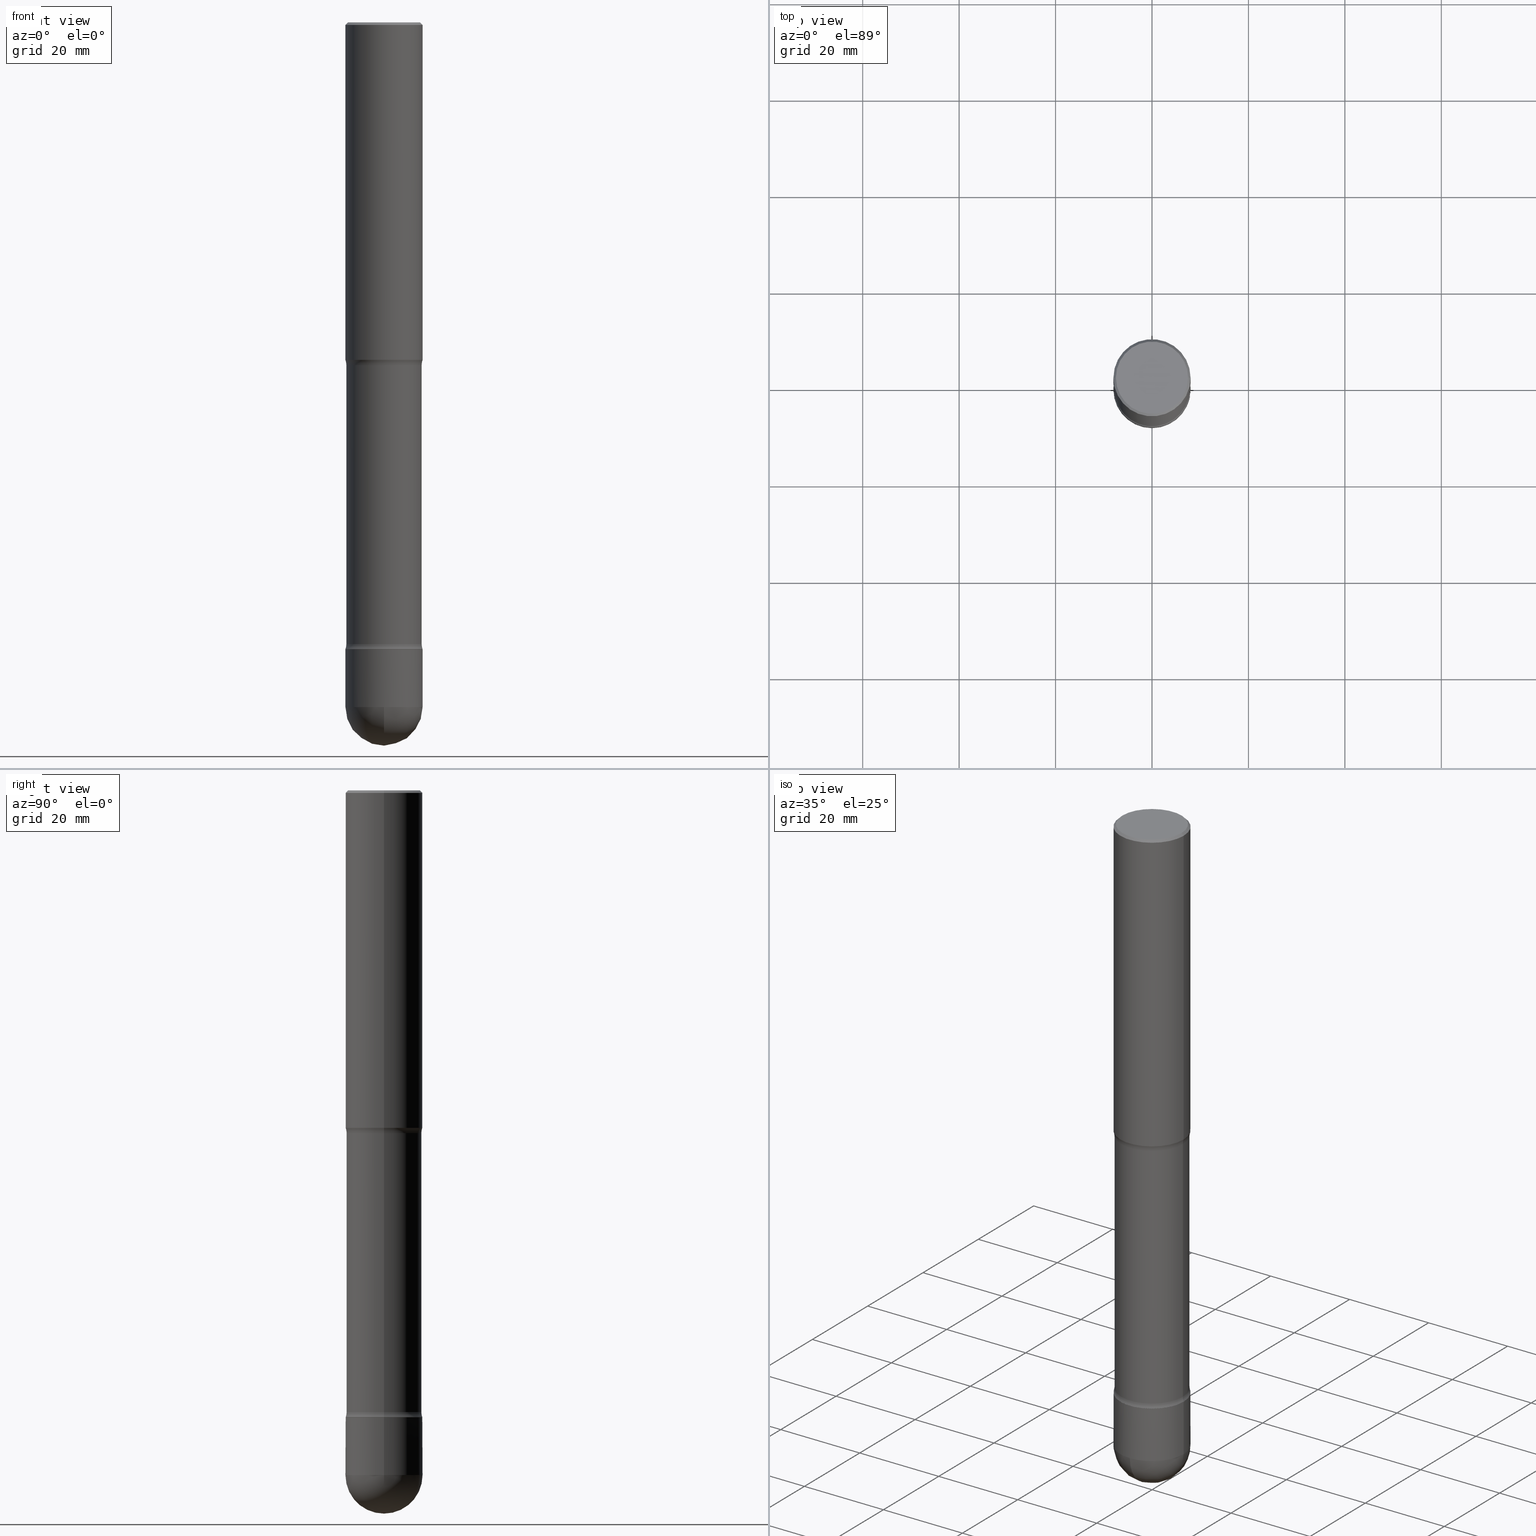
[diagram: canonical four-view strip — front | top / right | iso, engineering-drawing reading convention]
A machine part, canonical four-view strip (front | top / right | iso — engineering-drawing reading convention). The complete STEP part file that produces these views, byte-faithful:
ISO-10303-21;
HEADER;
FILE_DESCRIPTION (( 'STEP AP203' ),
    '1' );
FILE_NAME ('44619.STEP',
    '2024-02-29T19:25:50',
    ( '' ),
    ( '' ),
    'SwSTEP 2.0',
    'SolidWorks 2023',
    '' );
FILE_SCHEMA (( 'CONFIG_CONTROL_DESIGN' ));
ENDSEC;

DATA;
#1 = DIRECTION ( 'NONE',  ( 2.445468806185136597E-29, -3.491481338843145583E-15, -1.000000000000000000 ) ) ;
#2 = EDGE_CURVE ( 'NONE', #95, #460, #100, .T. ) ;
#3 = DIRECTION ( 'NONE',  ( 2.445468806185136597E-29, -3.491481338843145583E-15, -1.000000000000000000 ) ) ;
#4 = DIRECTION ( 'NONE',  ( 1.000000000000000000, -6.982962677686273021E-15, 0.000000000000000000 ) ) ;
#5 = ORIENTED_EDGE ( 'NONE', *, *, #277, .T. ) ;
#6 = LENGTH_MEASURE_WITH_UNIT ( LENGTH_MEASURE( 0.02539999999999999897 ), #123 );
#7 = AXIS2_PLACEMENT_3D ( 'NONE', #373, #77, #253 ) ;
#8 = EDGE_CURVE ( 'NONE', #544, #311, #177, .T. ) ;
#9 = VERTEX_POINT ( 'NONE', #181 ) ;
#10 = DIRECTION ( 'NONE',  ( 1.000000000000000000, -6.982962677686268288E-15, 0.000000000000000000 ) ) ;
#11 = FACE_OUTER_BOUND ( 'NONE', #497, .T. ) ;
#12 = ORIENTED_EDGE ( 'NONE', *, *, #203, .T. ) ;
#13 = VERTEX_POINT ( 'NONE', #545 ) ;
#14 = CARTESIAN_POINT ( 'NONE',  ( -0.3144499999999990081, -1.563544900773547130E-14, -5.118099999999999206 ) ) ;
#15 = CARTESIAN_POINT ( 'NONE',  ( 0.000000000000000000, 0.000000000000000000, 0.000000000000000000 ) ) ;
#16 = CARTESIAN_POINT ( 'NONE',  ( 1.251615389693614574E-28, -1.786975064033310244E-14, -5.118099999999999206 ) ) ;
#17 = EDGE_LOOP ( 'NONE', ( #145, #236, #274, #354 ) ) ;
#18 = TOROIDAL_SURFACE ( 'NONE', #556, 0.4324500000000119360, 0.1250000000000123512 ) ;
#19 = CALENDAR_DATE ( 2024, 29, 2 ) ;
#20 = AXIS2_PLACEMENT_3D ( 'NONE', #16, #175, #281 ) ;
#21 = AXIS2_PLACEMENT_3D ( 'NONE', #176, #337, #48 ) ;
#22 = ORIENTED_EDGE ( 'NONE', *, *, #81, .F. ) ;
#23 = ADVANCED_FACE ( 'NONE', ( #402 ), #356, .T. ) ;
#24 = APPLICATION_PROTOCOL_DEFINITION ( 'international standard', 'config_control_design', 1994, #214 ) ;
#25 = ADVANCED_FACE ( 'NONE', ( #349 ), #297, .T. ) ;
#26 = DATE_AND_TIME ( #358, #144 ) ;
#27 = DIRECTION ( 'NONE',  ( -1.000000000000000000, 6.982962677686265922E-15, -4.876176775795935793E-29 ) ) ;
#28 = APPROVAL_DATE_TIME ( #365, #147 ) ;
#29 = VECTOR ( 'NONE', #84, 39.37007874015748854 ) ;
#30 = VECTOR ( 'NONE', #444, 39.37007874015748143 ) ;
#31 = PLANE ( 'NONE',  #230 ) ;
#32 = DIRECTION ( 'NONE',  ( 6.982962677686266711E-15, 1.000000000000000000, 0.000000000000000000 ) ) ;
#33 = CC_DESIGN_PERSON_AND_ORGANIZATION_ASSIGNMENT ( #137, #459, ( #115 ) ) ;
#34 = DIRECTION ( 'NONE',  ( -2.445468806185136597E-29, 3.491481338843145583E-15, 1.000000000000000000 ) ) ;
#35 = PERSON ( 'UNSPECIFIED', 'UNSPECIFIED', 'UNSPECIFIED', ('UNSPECIFIED'), ('UNSPECIFIED'), ('UNSPECIFIED') ) ;
#36 = PRODUCT_DEFINITION_SHAPE ( 'NONE', 'NONE',  #228 ) ;
#37 = VECTOR ( 'NONE', #179, 39.37007874015748143 ) ;
#38 = FACE_OUTER_BOUND ( 'NONE', #234, .T. ) ;
#39 = CARTESIAN_POINT ( 'NONE',  ( 0.000000000000000000, 0.000000000000000000, 0.000000000000000000 ) ) ;
#40 = ADVANCED_FACE ( 'NONE', ( #135 ), #119, .T. ) ;
#41 = DIRECTION ( 'NONE',  ( 2.445468806185136597E-29, -3.491481338843145583E-15, -1.000000000000000000 ) ) ;
#42 = CARTESIAN_POINT ( 'NONE',  ( -0.3148173271255953476, -1.567011047892184807E-14, -5.117732672874402589 ) ) ;
#43 = CIRCLE ( 'NONE', #7, 0.3149499999999997302 ) ;
#44 = TOROIDAL_SURFACE ( 'NONE', #348, 0.4324500000000119360, 0.1250000000000123512 ) ;
#45 = FACE_OUTER_BOUND ( 'NONE', #385, .T. ) ;
#46 = CARTESIAN_POINT ( 'NONE',  ( 6.739467482965619353E-29, -9.622173421717825968E-15, -2.755900000000000460 ) ) ;
#47 = DIRECTION ( 'NONE',  ( 2.445468806185136597E-29, -3.491481338843145583E-15, -1.000000000000000000 ) ) ;
#48 = DIRECTION ( 'NONE',  ( 1.000000000000000000, -6.982962677686266711E-15, 4.876176775795935793E-29 ) ) ;
#49 = CARTESIAN_POINT ( 'NONE',  ( 1.364458217214061005E-28, -1.955787124980869236E-14, -5.590549999999999464 ) ) ;
#50 = FACE_OUTER_BOUND ( 'NONE', #194, .T. ) ;
#51 = LINE ( 'NONE', #563, #30 ) ;
#52 = VERTEX_POINT ( 'NONE', #146 ) ;
#53 = DIRECTION ( 'NONE',  ( 2.445468806185136597E-29, -3.491481338843145583E-15, -1.000000000000000000 ) ) ;
#54 = DIRECTION ( 'NONE',  ( 6.982962677686266711E-15, 1.000000000000000000, -3.469564049740295925E-15 ) ) ;
#55 = TOROIDAL_SURFACE ( 'NONE', #191, 0.4324499999999875111, 0.1249999999999883010 ) ;
#56 = FACE_OUTER_BOUND ( 'NONE', #140, .T. ) ;
#57 = EDGE_LOOP ( 'NONE', ( #456, #168, #495, #22 ) ) ;
#58 = DATE_AND_TIME ( #282, #306 ) ;
#59 = PRODUCT_RELATED_PRODUCT_CATEGORY ( 'detail', '', ( #115 ) ) ;
#60 = ADVANCED_FACE ( 'NONE', ( #50 ), #132, .T. ) ;
#61 = VERTEX_POINT ( 'NONE', #307 ) ;
#62 = EDGE_CURVE ( 'NONE', #458, #460, #351, .T. ) ;
#63 = ORIENTED_EDGE ( 'NONE', *, *, #208, .F. ) ;
#64 = APPROVAL_STATUS ( 'not_yet_approved' ) ;
#65 = AXIS2_PLACEMENT_3D ( 'NONE', #534, #361, #10 ) ;
#66 = CIRCLE ( 'NONE', #552, 0.2949499999999996569 ) ;
#67 = ADVANCED_FACE ( 'NONE', ( #56 ), #345, .T. ) ;
#68 = CARTESIAN_POINT ( 'NONE',  ( 0.3149499999999990085, -2.089380991493860711E-14, -5.590549999999999464 ) ) ;
#69 = COORDINATED_UNIVERSAL_TIME_OFFSET ( 5, 0, .BEHIND. ) ;
#70 = ORIENTED_EDGE ( 'NONE', *, *, #486, .F. ) ;
#71 = ADVANCED_FACE ( 'NONE', ( #190 ), #294, .T. ) ;
#72 = PERSON_AND_ORGANIZATION ( #35, #76 ) ;
#73 = VERTEX_POINT ( 'NONE', #98 ) ;
#74 = CARTESIAN_POINT ( 'NONE',  ( 1.364458217214061005E-28, -1.955787124980869236E-14, -5.590549999999999464 ) ) ;
#75 = CIRCLE ( 'NONE', #332, 0.3149499999999990085 ) ;
#76 = ORGANIZATION ( 'UNSPECIFIED', 'UNSPECIFIED', '' ) ;
#77 = DIRECTION ( 'NONE',  ( -1.000000000000000000, 7.105427357601001070E-15, -4.926315508542082329E-29 ) ) ;
#78 = APPLICATION_CONTEXT ( 'configuration controlled 3d designs of mechanical parts and assemblies' ) ;
#79 = EDGE_CURVE ( 'NONE', #464, #405, #312, .T. ) ;
#80 = EDGE_LOOP ( 'NONE', ( #293, #12, #539, #63 ) ) ;
#81 = EDGE_CURVE ( 'NONE', #206, #311, #199, .T. ) ;
#82 = AXIS2_PLACEMENT_3D ( 'NONE', #46, #182, #447 ) ;
#83 = EDGE_CURVE ( 'NONE', #131, #13, #75, .T. ) ;
#84 = DIRECTION ( 'NONE',  ( 0.7071067811863501751, -2.468850131080190245E-15, 0.7071067811867446373 ) ) ;
#85 = CARTESIAN_POINT ( 'NONE',  ( 0.3149500000000000077, -7.006715368645488390E-15, -2.755900000000000460 ) ) ;
#86 = DIRECTION ( 'NONE',  ( -1.000000000000000000, 6.982962677686268288E-15, 0.000000000000000000 ) ) ;
#87 = AXIS2_PLACEMENT_3D ( 'NONE', #496, #273, #174 ) ;
#88 = AXIS2_PLACEMENT_3D ( 'NONE', #227, #231, #141 ) ;
#89 = CIRCLE ( 'NONE', #370, 0.3144499999999990081 ) ;
#90 = LINE ( 'NONE', #224, #29 ) ;
#91 = CARTESIAN_POINT ( 'NONE',  ( 0.3149499999999990640, -2.199284095337283166E-15, 1.535751875536925365E-29 ) ) ;
#92 = ORIENTED_EDGE ( 'NONE', *, *, #378, .F. ) ;
#93 = DIRECTION ( 'NONE',  ( 1.000000000000000000, -6.982962677686273021E-15, 0.000000000000000000 ) ) ;
#94 = DIRECTION ( 'NONE',  ( 1.000000000000000000, -6.982962677686261977E-15, 0.000000000000000000 ) ) ;
#95 = VERTEX_POINT ( 'NONE', #470 ) ;
#96 = ORIENTED_EDGE ( 'NONE', *, *, #136, .T. ) ;
#97 = DIRECTION ( 'NONE',  ( -1.000000000000000000, 6.982962677686267499E-15, -4.883557194083113462E-29 ) ) ;
#98 = CARTESIAN_POINT ( 'NONE',  ( 0.3149499999999990640, -2.006903473567038758E-14, -5.118099999999999206 ) ) ;
#99 = EDGE_CURVE ( 'NONE', #95, #206, #163, .T. ) ;
#100 = CIRCLE ( 'NONE', #192, 0.3148173271255953476 ) ;
#101 = PERSON_AND_ORGANIZATION_ROLE ( 'creator' ) ;
#102 = AXIS2_PLACEMENT_3D ( 'NONE', #15, #104, #109 ) ;
#103 = DIRECTION ( 'NONE',  ( -1.000000000000000000, 6.982962677686265922E-15, 0.000000000000000000 ) ) ;
#104 = DIRECTION ( 'NONE',  ( 0.000000000000000000, 0.000000000000000000, 1.000000000000000000 ) ) ;
#105 = DIRECTION ( 'NONE',  ( -1.000000000000000000, 6.982962677686266711E-15, 0.000000000000000000 ) ) ;
#106 = PERSON_AND_ORGANIZATION ( #35, #76 ) ;
#107 = ORIENTED_EDGE ( 'NONE', *, *, #256, .T. ) ;
#108 = AXIS2_PLACEMENT_3D ( 'NONE', #257, #369, #509 ) ;
#109 = DIRECTION ( 'NONE',  ( 1.000000000000000000, 0.000000000000000000, 0.000000000000000000 ) ) ;
#110 = ORIENTED_EDGE ( 'NONE', *, *, #378, .T. ) ;
#111 = DIRECTION ( 'NONE',  ( 2.445468806185136597E-29, -3.491481338843145583E-15, -1.000000000000000000 ) ) ;
#112 = DIRECTION ( 'NONE',  ( 6.860497997771531562E-15, 1.000000000000000000, -3.491481338843145583E-15 ) ) ;
#113 = EDGE_LOOP ( 'NONE', ( #183, #130, #271, #313 ) ) ;
#114 = CIRCLE ( 'NONE', #401, 0.3149499999999990640 ) ;
#115 = PRODUCT ( '44619', '44619', '', ( #185 ) ) ;
#116 = ADVANCED_FACE ( 'NONE', ( #205 ), #31, .T. ) ;
#117 = CARTESIAN_POINT ( 'NONE',  ( 0.3149499999999997302, -2.230543471175006266E-15, -0.02000000000000033348 ) ) ;
#118 = CARTESIAN_POINT ( 'NONE',  ( 6.843758914944387642E-29, -9.771073946490062515E-15, -2.798546805273080640 ) ) ;
#119 = CONICAL_SURFACE ( 'NONE', #65, 0.3144499999999990081, 0.7853981633971693910 ) ;
#120 = AXIS2_PLACEMENT_3D ( 'NONE', #344, #229, #54 ) ;
#121 = DIRECTION ( 'NONE',  ( -1.000000000000000000, 6.982962677686268288E-15, 0.000000000000000000 ) ) ;
#122 = DIRECTION ( 'NONE',  ( -2.445468806185136597E-29, 3.491481338843145583E-15, 1.000000000000000000 ) ) ;
#123 =( LENGTH_UNIT ( ) NAMED_UNIT ( * ) SI_UNIT ( $, .METRE. ) );
#124 = DIRECTION ( 'NONE',  ( 2.445468806185136877E-29, -3.491481338843145188E-15, -1.000000000000000000 ) ) ;
#125 = CARTESIAN_POINT ( 'NONE',  ( 1.367151563441831346E-28, -1.951930099886954466E-14, -5.590549999999999464 ) ) ;
#126 = AXIS2_PLACEMENT_3D ( 'NONE', #529, #406, #105 ) ;
#127 = AXIS2_PLACEMENT_3D ( 'NONE', #241, #291, #474 ) ;
#128 = DIRECTION ( 'NONE',  ( 2.445468806185136597E-29, -3.491481338843145583E-15, -1.000000000000000000 ) ) ;
#129 = DESIGN_CONTEXT ( 'detailed design', #78, 'design' ) ;
#130 = ORIENTED_EDGE ( 'NONE', *, *, #188, .T. ) ;
#131 = VERTEX_POINT ( 'NONE', #68 ) ;
#132 = CYLINDRICAL_SURFACE ( 'NONE', #20, 0.3149499999999998967 ) ;
#133 = DIRECTION ( 'NONE',  ( 2.445468806185136597E-29, -3.491481338843145583E-15, -1.000000000000000000 ) ) ;
#134 = CC_DESIGN_PERSON_AND_ORGANIZATION_ASSIGNMENT ( #316, #363, ( #516 ) ) ;
#135 = FACE_OUTER_BOUND ( 'NONE', #536, .T. ) ;
#136 = EDGE_CURVE ( 'NONE', #505, #154, #473, .T. ) ;
#137 = PERSON_AND_ORGANIZATION ( #35, #76 ) ;
#138 = EDGE_LOOP ( 'NONE', ( #547, #457 ) ) ;
#139 = ORIENTED_EDGE ( 'NONE', *, *, #166, .T. ) ;
#140 = EDGE_LOOP ( 'NONE', ( #151, #504, #221, #180 ) ) ;
#141 = DIRECTION ( 'NONE',  ( 1.000000000000000000, -6.982962677686268288E-15, 0.000000000000000000 ) ) ;
#142 = CIRCLE ( 'NONE', #108, 0.3149499999999990085 ) ;
#143 = APPROVAL_STATUS ( 'not_yet_approved' ) ;
#144 = LOCAL_TIME ( 14, 25, 50.00000000000000000, #150 ) ;
#145 = ORIENTED_EDGE ( 'NONE', *, *, #188, .F. ) ;
#146 = CARTESIAN_POINT ( 'NONE',  ( -0.2949499999999996569, 2.059624841783562091E-15, -1.438228340021009676E-29 ) ) ;
#147 = APPROVAL ( #64, 'UNSPECIFIED' ) ;
#148 = PERSON_AND_ORGANIZATION ( #35, #76 ) ;
#149 = CARTESIAN_POINT ( 'NONE',  ( 1.367151563441831346E-28, -1.951930099886954466E-14, -5.590549999999999464 ) ) ;
#150 = COORDINATED_UNIVERSAL_TIME_OFFSET ( 5, 0, .BEHIND. ) ;
#151 = ORIENTED_EDGE ( 'NONE', *, *, #79, .T. ) ;
#152 = EDGE_CURVE ( 'NONE', #52, #464, #554, .T. ) ;
#153 = DIRECTION ( 'NONE',  ( -2.445468806185136877E-29, 3.491481338843145188E-15, 1.000000000000000000 ) ) ;
#154 = VERTEX_POINT ( 'NONE', #197 ) ;
#155 = CIRCLE ( 'NONE', #475, 0.3149499999999997302 ) ;
#156 = APPROVAL_PERSON_ORGANIZATION ( #462, #147, #243 ) ;
#157 = CYLINDRICAL_SURFACE ( 'NONE', #532, 0.3074499999999993904 ) ;
#158 = APPROVAL ( #320, 'UNSPECIFIED' ) ;
#159 = EDGE_CURVE ( 'NONE', #336, #9, #489, .T. ) ;
#160 = CARTESIAN_POINT ( 'NONE',  ( 0.3074499999999996125, -1.585522214044031702E-14, -5.075453194726919470 ) ) ;
#161 = DIRECTION ( 'NONE',  ( 2.445468806185136597E-29, -3.491481338843145583E-15, -1.000000000000000000 ) ) ;
#162 = EDGE_CURVE ( 'NONE', #368, #61, #43, .T. ) ;
#163 = CIRCLE ( 'NONE', #389, 0.1250000000000123512 ) ;
#164 =( GEOMETRIC_REPRESENTATION_CONTEXT ( 3 ) GLOBAL_UNCERTAINTY_ASSIGNED_CONTEXT ( ( #186 ) ) GLOBAL_UNIT_ASSIGNED_CONTEXT ( ( #352, #435, #278 ) ) REPRESENTATION_CONTEXT ( 'NONE', 'WORKASPACE' ) );
#165 = EDGE_LOOP ( 'NONE', ( #448, #491 ) ) ;
#166 = EDGE_CURVE ( 'NONE', #405, #464, #325, .T. ) ;
#167 = DIRECTION ( 'NONE',  ( -1.000000000000000000, 6.982962677686265922E-15, -4.876176775795935793E-29 ) ) ;
#168 = ORIENTED_EDGE ( 'NONE', *, *, #275, .T. ) ;
#169 = CARTESIAN_POINT ( 'NONE',  ( -0.3074499999999996125, -1.557393824030622744E-14, -5.075453194726919470 ) ) ;
#170 = CYLINDRICAL_SURFACE ( 'NONE', #21, 0.3149499999999990640 ) ;
#171 = CIRCLE ( 'NONE', #453, 0.3148173271255953476 ) ;
#172 = DIRECTION ( 'NONE',  ( -1.000000000000000000, 6.982962677686266711E-15, -4.883557194083112901E-29 ) ) ;
#173 = DIRECTION ( 'NONE',  ( 2.445468806185136597E-29, -3.491481338843145583E-15, -1.000000000000000000 ) ) ;
#174 = DIRECTION ( 'NONE',  ( -1.000000000000000000, 6.982962677686262766E-15, 0.000000000000000000 ) ) ;
#175 = DIRECTION ( 'NONE',  ( 2.445468806185136597E-29, -3.491481338843145583E-15, -1.000000000000000000 ) ) ;
#176 = CARTESIAN_POINT ( 'NONE',  ( 0.000000000000000000, 0.000000000000000000, 0.000000000000000000 ) ) ;
#177 = LINE ( 'NONE', #492, #267 ) ;
#178 = CIRCLE ( 'NONE', #555, 0.1249999999999882871 ) ;
#179 = DIRECTION ( 'NONE',  ( -2.445468806185136877E-29, 3.491481338843145188E-15, 1.000000000000000000 ) ) ;
#180 = ORIENTED_EDGE ( 'NONE', *, *, #355, .F. ) ;
#181 = CARTESIAN_POINT ( 'NONE',  ( -0.3149500000000000077, -7.422889326380536097E-15, -2.755900000000000460 ) ) ;
#182 = DIRECTION ( 'NONE',  ( 2.445468806185136597E-29, -3.491481338843145583E-15, -1.000000000000000000 ) ) ;
#183 = ORIENTED_EDGE ( 'NONE', *, *, #465, .T. ) ;
#184 = ORIENTED_EDGE ( 'NONE', *, *, #62, .T. ) ;
#185 = MECHANICAL_CONTEXT ( 'NONE', #214, 'mechanical' ) ;
#186 = UNCERTAINTY_MEASURE_WITH_UNIT (LENGTH_MEASURE( 1.000000000000000082E-05 ), #352, 'distance_accuracy_value', 'NONE');
#187 = ORIENTED_EDGE ( 'NONE', *, *, #263, .T. ) ;
#188 = EDGE_CURVE ( 'NONE', #290, #405, #255, .T. ) ;
#189 = ORIENTED_EDGE ( 'NONE', *, *, #478, .T. ) ;
#190 = FACE_OUTER_BOUND ( 'NONE', #17, .T. ) ;
#191 = AXIS2_PLACEMENT_3D ( 'NONE', #523, #3, #261 ) ;
#192 = AXIS2_PLACEMENT_3D ( 'NONE', #398, #53, #498 ) ;
#193 = DATE_AND_TIME ( #19, #268 ) ;
#194 = EDGE_LOOP ( 'NONE', ( #425, #139, #238, #279 ) ) ;
#195 = APPROVAL_ROLE ( '' ) ;
#196 = COORDINATED_UNIVERSAL_TIME_OFFSET ( 5, 0, .BEHIND. ) ;
#197 = CARTESIAN_POINT ( 'NONE',  ( -0.3149499999999990640, -1.645667147332489546E-14, -5.118099999999999206 ) ) ;
#198 = COORDINATED_UNIVERSAL_TIME_OFFSET ( 5, 0, .BEHIND. ) ;
#199 = CIRCLE ( 'NONE', #424, 0.3074499999999996125 ) ;
#200 = DIRECTION ( 'NONE',  ( 6.860497997771531562E-15, 1.000000000000000000, -3.491481338843145583E-15 ) ) ;
#201 = CC_DESIGN_DATE_AND_TIME_ASSIGNMENT ( #58, #416, ( #228 ) ) ;
#202 = AXIS2_PLACEMENT_3D ( 'NONE', #149, #403, #94 ) ;
#203 = EDGE_CURVE ( 'NONE', #353, #336, #178, .T. ) ;
#204 = DIRECTION ( 'NONE',  ( -1.000000000000000000, 6.982962677686266711E-15, 0.000000000000000000 ) ) ;
#205 = FACE_OUTER_BOUND ( 'NONE', #138, .T. ) ;
#206 = VERTEX_POINT ( 'NONE', #160 ) ;
#207 = MANIFOLD_SOLID_BREP ( 'Body-Move/Copy2[2]', #217 ) ;
#208 = EDGE_CURVE ( 'NONE', #544, #9, #380, .T. ) ;
#209 = DIRECTION ( 'NONE',  ( -6.982962677686266711E-15, -1.000000000000000000, 3.491481338843145583E-15 ) ) ;
#210 = VECTOR ( 'NONE', #507, 39.37007874015748143 ) ;
#211 = AXIS2_PLACEMENT_3D ( 'NONE', #269, #493, #341 ) ;
#212 = ORIENTED_EDGE ( 'NONE', *, *, #162, .F. ) ;
#213 = LINE ( 'NONE', #561, #250 ) ;
#214 = APPLICATION_CONTEXT ( 'configuration controlled 3d designs of mechanical parts and assemblies' ) ;
#215 = CARTESIAN_POINT ( 'NONE',  ( 0.3149499999999997302, -2.230543471175006266E-15, -0.02000000000000033348 ) ) ;
#216 = DIRECTION ( 'NONE',  ( -1.000000000000000000, 6.982962677686265922E-15, -4.883557194083112901E-29 ) ) ;
#217 = CLOSED_SHELL ( 'NONE', ( #25, #518, #254, #335, #67, #429, #71, #60, #322, #23, #327, #40, #116, #376 ) ) ;
#218 = TOROIDAL_SURFACE ( 'NONE', #522, 0.4324499999999875111, 0.1249999999999883010 ) ;
#219 = DIRECTION ( 'NONE',  ( -2.438088387897960049E-29, 3.491481338843145188E-15, 1.000000000000000000 ) ) ;
#220 = DIRECTION ( 'NONE',  ( -2.445468806185136597E-29, 3.491481338843145583E-15, 1.000000000000000000 ) ) ;
#221 = ORIENTED_EDGE ( 'NONE', *, *, #537, .F. ) ;
#222 = MANIFOLD_SOLID_BREP ( 'Body-Move/Copy2[1]', #339 ) ;
#223 = DIRECTION ( 'NONE',  ( -1.000000000000000000, 6.982962677686262766E-15, 0.000000000000000000 ) ) ;
#224 = CARTESIAN_POINT ( 'NONE',  ( 0.3144499999999990081, -2.006554325433154299E-14, -5.118099999999999206 ) ) ;
#225 = FACE_OUTER_BOUND ( 'NONE', #409, .T. ) ;
#226 = ORIENTED_EDGE ( 'NONE', *, *, #256, .F. ) ;
#227 = CARTESIAN_POINT ( 'NONE',  ( 1.251615389693614574E-28, -1.786975064033310244E-14, -5.118099999999999206 ) ) ;
#228 = PRODUCT_DEFINITION ( 'UNKNOWN', '', #232, #129 ) ;
#229 = DIRECTION ( 'NONE',  ( -1.000000000000000000, 6.982962677686266711E-15, -4.883557194083112901E-29 ) ) ;
#230 = AXIS2_PLACEMENT_3D ( 'NONE', #319, #420, #27 ) ;
#231 = DIRECTION ( 'NONE',  ( -2.445468806185136597E-29, 3.491481338843145583E-15, 1.000000000000000000 ) ) ;
#232 = PRODUCT_DEFINITION_FORMATION_WITH_SPECIFIED_SOURCE ( 'ANY', '', #115, .NOT_KNOWN. ) ;
#233 = DIRECTION ( 'NONE',  ( 1.000000000000000000, -6.982962677686266711E-15, 4.876176775795935793E-29 ) ) ;
#234 = EDGE_LOOP ( 'NONE', ( #5, #189, #550, #501 ) ) ;
#235 = DIRECTION ( 'NONE',  ( 2.445468806185136597E-29, -3.491481338843145583E-15, -1.000000000000000000 ) ) ;
#236 = ORIENTED_EDGE ( 'NONE', *, *, #347, .T. ) ;
#237 = PERSON_AND_ORGANIZATION_ROLE ( 'creator' ) ;
#238 = ORIENTED_EDGE ( 'NONE', *, *, #355, .T. ) ;
#239 = CARTESIAN_POINT ( 'NONE',  ( 1.251615389693614574E-28, -1.786975064033310244E-14, -5.118099999999999206 ) ) ;
#240 = ORIENTED_EDGE ( 'NONE', *, *, #99, .T. ) ;
#241 = CARTESIAN_POINT ( 'NONE',  ( 4.890937612370354609E-31, -6.982962677686407473E-17, -0.02000000000000033348 ) ) ;
#242 = AXIS2_PLACEMENT_3D ( 'NONE', #428, #161, #329 ) ;
#243 = APPROVAL_ROLE ( '' ) ;
#244 = CC_DESIGN_APPROVAL ( #158, ( #516 ) ) ;
#245 = EDGE_LOOP ( 'NONE', ( #283, #184, #514, #246 ) ) ;
#246 = ORIENTED_EDGE ( 'NONE', *, *, #284, .F. ) ;
#247 = CALENDAR_DATE ( 2024, 29, 2 ) ;
#248 = ADVANCED_FACE ( 'NONE', ( #558 ), #372, .F. ) ;
#249 = DIRECTION ( 'NONE',  ( 1.000000000000000000, -6.982962677686265922E-15, 4.883557194083112340E-29 ) ) ;
#250 = VECTOR ( 'NONE', #124, 39.37007874015748143 ) ;
#251 = DIRECTION ( 'NONE',  ( -1.000000000000000000, 6.982962677686268288E-15, 0.000000000000000000 ) ) ;
#252 = CIRCLE ( 'NONE', #202, 0.3149499999999990085 ) ;
#253 = DIRECTION ( 'NONE',  ( -7.105427357601000281E-15, -1.000000000000000000, 0.000000000000000000 ) ) ;
#254 = ADVANCED_FACE ( 'NONE', ( #38 ), #157, .T. ) ;
#255 = LINE ( 'NONE', #117, #452 ) ;
#256 = EDGE_CURVE ( 'NONE', #505, #61, #142, .T. ) ;
#257 = CARTESIAN_POINT ( 'NONE',  ( 1.367151563441831346E-28, -1.951930099886954466E-14, -5.590549999999999464 ) ) ;
#258 = AXIS2_PLACEMENT_3D ( 'NONE', #423, #374, #338 ) ;
#259 = FACE_OUTER_BOUND ( 'NONE', #286, .T. ) ;
#260 = CC_DESIGN_PERSON_AND_ORGANIZATION_ASSIGNMENT ( #72, #101, ( #228 ) ) ;
#261 = DIRECTION ( 'NONE',  ( -1.000000000000000000, 6.982962677686265922E-15, -4.883557194083112901E-29 ) ) ;
#262 = CARTESIAN_POINT ( 'NONE',  ( -0.3149499999999997302, 2.129454468560423812E-15, -0.02000000000000033348 ) ) ;
#263 = EDGE_CURVE ( 'NONE', #368, #13, #155, .T. ) ;
#264 = CARTESIAN_POINT ( 'NONE',  ( 1.251525560990883511E-28, -1.786846812452882696E-14, -5.117732672874402589 ) ) ;
#265 = AXIS2_PLACEMENT_3D ( 'NONE', #49, #172, #303 ) ;
#266 = ORIENTED_EDGE ( 'NONE', *, *, #2, .T. ) ;
#267 = VECTOR ( 'NONE', #395, 39.37007874015748143 ) ;
#268 = LOCAL_TIME ( 14, 25, 50.00000000000000000, #198 ) ;
#269 = CARTESIAN_POINT ( 'NONE',  ( -0.4324500000000119360, -1.470106790559535575E-14, -5.075453194726918582 ) ) ;
#270 = EDGE_CURVE ( 'NONE', #61, #131, #500, .T. ) ;
#271 = ORIENTED_EDGE ( 'NONE', *, *, #79, .F. ) ;
#272 = FACE_OUTER_BOUND ( 'NONE', #80, .T. ) ;
#273 = DIRECTION ( 'NONE',  ( 2.445468806185136597E-29, -3.491481338843145583E-15, -1.000000000000000000 ) ) ;
#274 = ORIENTED_EDGE ( 'NONE', *, *, #152, .T. ) ;
#275 = EDGE_CURVE ( 'NONE', #353, #544, #287, .T. ) ;
#276 = AXIS2_PLACEMENT_3D ( 'NONE', #386, #530, #383 ) ;
#277 = EDGE_CURVE ( 'NONE', #544, #353, #521, .T. ) ;
#278 =( NAMED_UNIT ( * ) SI_UNIT ( $, .STERADIAN. ) SOLID_ANGLE_UNIT ( ) );
#279 = ORIENTED_EDGE ( 'NONE', *, *, #159, .F. ) ;
#280 = ORIENTED_EDGE ( 'NONE', *, *, #203, .F. ) ;
#281 = DIRECTION ( 'NONE',  ( -1.000000000000000000, 6.982962677686265922E-15, 0.000000000000000000 ) ) ;
#282 = CALENDAR_DATE ( 2024, 29, 2 ) ;
#283 = ORIENTED_EDGE ( 'NONE', *, *, #357, .F. ) ;
#284 = EDGE_CURVE ( 'NONE', #331, #95, #90, .T. ) ;
#285 = EDGE_LOOP ( 'NONE', ( #212, #187, #519, #366 ) ) ;
#286 = EDGE_LOOP ( 'NONE', ( #517, #107, #326, #421, #318 ) ) ;
#287 = CIRCLE ( 'NONE', #479, 0.3074499999999992239 ) ;
#288 = APPROVAL_ROLE ( '' ) ;
#289 = CIRCLE ( 'NONE', #543, 0.3149499999999990640 ) ;
#290 = VERTEX_POINT ( 'NONE', #446 ) ;
#291 = DIRECTION ( 'NONE',  ( 2.445468806185136597E-29, -3.491481338843145583E-15, -1.000000000000000000 ) ) ;
#292 = CARTESIAN_POINT ( 'NONE',  ( 0.4324500000000119360, -2.068767247469724299E-14, -5.075453194726918582 ) ) ;
#293 = ORIENTED_EDGE ( 'NONE', *, *, #275, .F. ) ;
#294 = CONICAL_SURFACE ( 'NONE', #400, 0.3149499999999997302, 0.7853981633974415066 ) ;
#295 = CIRCLE ( 'NONE', #476, 0.3144499999999990081 ) ;
#296 = DIRECTION ( 'NONE',  ( 2.445468806185136597E-29, -3.491481338843145583E-15, -1.000000000000000000 ) ) ;
#297 = CONICAL_SURFACE ( 'NONE', #88, 0.3144499999999990081, 0.7853981633971693910 ) ;
#298 = APPROVAL_PERSON_ORGANIZATION ( #408, #382, #195 ) ;
#299 = EDGE_CURVE ( 'NONE', #405, #336, #213, .T. ) ;
#300 = DIRECTION ( 'NONE',  ( -1.000000000000000000, 6.982962677686267499E-15, -4.883557194083113462E-29 ) ) ;
#301 = SPHERICAL_SURFACE ( 'NONE', #120, 0.3149499999999997302 ) ;
#302 = DIRECTION ( 'NONE',  ( 2.445468806185136877E-29, -3.491481338843145188E-15, -1.000000000000000000 ) ) ;
#303 = DIRECTION ( 'NONE',  ( 6.982962677686266711E-15, 1.000000000000000000, -3.469564049740295925E-15 ) ) ;
#304 = ORIENTED_EDGE ( 'NONE', *, *, #427, .F. ) ;
#305 = AXIS2_PLACEMENT_3D ( 'NONE', #375, #111, #204 ) ;
#306 = LOCAL_TIME ( 14, 25, 50.00000000000000000, #455 ) ;
#307 = CARTESIAN_POINT ( 'NONE',  ( -2.237854346276293990E-15, -0.3149500000000188815, -5.590549999999997688 ) ) ;
#308 = FACE_OUTER_BOUND ( 'NONE', #165, .T. ) ;
#309 = DIRECTION ( 'NONE',  ( 2.445468806185136597E-29, -3.491481338843145583E-15, -1.000000000000000000 ) ) ;
#310 = CALENDAR_DATE ( 2024, 29, 2 ) ;
#311 = VERTEX_POINT ( 'NONE', #169 ) ;
#312 = CIRCLE ( 'NONE', #126, 0.3149499999999997302 ) ;
#313 = ORIENTED_EDGE ( 'NONE', *, *, #152, .F. ) ;
#314 = DIRECTION ( 'NONE',  ( -1.000000000000000000, 6.982962677686263555E-15, 0.000000000000000000 ) ) ;
#315 = ADVANCED_FACE ( 'NONE', ( #259 ), #170, .T. ) ;
#316 = PERSON_AND_ORGANIZATION ( #35, #76 ) ;
#317 = DIRECTION ( 'NONE',  ( -1.000000000000000000, 6.982962677686266711E-15, 0.000000000000000000 ) ) ;
#318 = ORIENTED_EDGE ( 'NONE', *, *, #384, .F. ) ;
#319 = CARTESIAN_POINT ( 'NONE',  ( 2.195792613998564404E-15, 0.3144499999999811335, -5.118100000000000094 ) ) ;
#320 = APPROVAL_STATUS ( 'not_yet_approved' ) ;
#321 = EDGE_LOOP ( 'NONE', ( #379, #96, #394, #70, #410 ) ) ;
#322 = ADVANCED_FACE ( 'NONE', ( #45 ), #55, .F. ) ;
#323 = ORIENTED_EDGE ( 'NONE', *, *, #559, .T. ) ;
#324 = CARTESIAN_POINT ( 'NONE',  ( -0.3149499999999997302, 2.129454468560423812E-15, -0.02000000000000033348 ) ) ;
#325 = CIRCLE ( 'NONE', #242, 0.3149499999999997302 ) ;
#326 = ORIENTED_EDGE ( 'NONE', *, *, #270, .T. ) ;
#327 = ADVANCED_FACE ( 'NONE', ( #433 ), #44, .F. ) ;
#328 = CARTESIAN_POINT ( 'NONE',  ( 1.251615389693614574E-28, -1.786975064033310244E-14, -5.118099999999999206 ) ) ;
#329 = DIRECTION ( 'NONE',  ( -1.000000000000000000, 6.982962677686266711E-15, 0.000000000000000000 ) ) ;
#330 = CIRCLE ( 'NONE', #87, 0.3074499999999996125 ) ;
#331 = VERTEX_POINT ( 'NONE', #387 ) ;
#332 = AXIS2_PLACEMENT_3D ( 'NONE', #125, #34, #413 ) ;
#333 = EDGE_LOOP ( 'NONE', ( #323, #564 ) ) ;
#334 = CARTESIAN_POINT ( 'NONE',  ( 1.251615389693614574E-28, -1.786975064033310244E-14, -5.118099999999999206 ) ) ;
#335 = ADVANCED_FACE ( 'NONE', ( #272 ), #218, .F. ) ;
#336 = VERTEX_POINT ( 'NONE', #85 ) ;
#337 = DIRECTION ( 'NONE',  ( -2.445468806185136597E-29, 3.491481338843145583E-15, 1.000000000000000000 ) ) ;
#338 = DIRECTION ( 'NONE',  ( 1.000000000000000000, -6.982962677686261977E-15, 0.000000000000000000 ) ) ;
#339 = CLOSED_SHELL ( 'NONE', ( #449, #510, #512, #315, #248 ) ) ;
#340 = CIRCLE ( 'NONE', #211, 0.1250000000000123512 ) ;
#341 = DIRECTION ( 'NONE',  ( 1.000000000000000000, -6.982962677686271444E-15, 0.000000000000000000 ) ) ;
#342 = CARTESIAN_POINT ( 'NONE',  ( 1.241186246495737521E-28, -1.772085011556086274E-14, -5.075453194726918582 ) ) ;
#343 = DIRECTION ( 'NONE',  ( 2.445468806185136597E-29, -3.491481338843145583E-15, -1.000000000000000000 ) ) ;
#344 = CARTESIAN_POINT ( 'NONE',  ( 1.364458217214061005E-28, -1.955787124980869236E-14, -5.590549999999999464 ) ) ;
#345 = CYLINDRICAL_SURFACE ( 'NONE', #439, 0.3149499999999998967 ) ;
#346 = LINE ( 'NONE', #565, #502 ) ;
#347 = EDGE_CURVE ( 'NONE', #290, #52, #66, .T. ) ;
#348 = AXIS2_PLACEMENT_3D ( 'NONE', #437, #343, #300 ) ;
#349 = FACE_OUTER_BOUND ( 'NONE', #245, .T. ) ;
#350 = FACE_OUTER_BOUND ( 'NONE', #285, .T. ) ;
#351 = LINE ( 'NONE', #14, #431 ) ;
#352 =( CONVERSION_BASED_UNIT ( 'INCH', #6 ) LENGTH_UNIT ( ) NAMED_UNIT ( #541 ) );
#353 = VERTEX_POINT ( 'NONE', #396 ) ;
#354 = ORIENTED_EDGE ( 'NONE', *, *, #166, .F. ) ;
#355 = EDGE_CURVE ( 'NONE', #464, #9, #346, .T. ) ;
#356 = CYLINDRICAL_SURFACE ( 'NONE', #542, 0.3074499999999993904 ) ;
#357 = EDGE_CURVE ( 'NONE', #458, #331, #89, .T. ) ;
#358 = CALENDAR_DATE ( 2024, 29, 2 ) ;
#359 = ORIENTED_EDGE ( 'NONE', *, *, #99, .F. ) ;
#360 = AXIS2_PLACEMENT_3D ( 'NONE', #328, #432, #167 ) ;
#361 = DIRECTION ( 'NONE',  ( -2.445468806185136597E-29, 3.491481338843145583E-15, 1.000000000000000000 ) ) ;
#362 = AXIS2_PLACEMENT_3D ( 'NONE', #399, #388, #438 ) ;
#363 = PERSON_AND_ORGANIZATION_ROLE ( 'classification_officer' ) ;
#364 = ORIENTED_EDGE ( 'NONE', *, *, #527, .T. ) ;
#365 = DATE_AND_TIME ( #310, #480 ) ;
#366 = ORIENTED_EDGE ( 'NONE', *, *, #270, .F. ) ;
#367 = APPROVAL_DATE_TIME ( #419, #158 ) ;
#368 = VERTEX_POINT ( 'NONE', #562 ) ;
#369 = DIRECTION ( 'NONE',  ( -2.445468806185136597E-29, 3.491481338843145583E-15, 1.000000000000000000 ) ) ;
#370 = AXIS2_PLACEMENT_3D ( 'NONE', #484, #128, #121 ) ;
#371 = APPLICATION_PROTOCOL_DEFINITION ( 'international standard', 'config_control_design', 1994, #78 ) ;
#372 = PLANE ( 'NONE',  #360 ) ;
#373 = CARTESIAN_POINT ( 'NONE',  ( 1.364458217214061005E-28, -1.955787124980869236E-14, -5.590549999999999464 ) ) ;
#374 = DIRECTION ( 'NONE',  ( -2.445468806185136597E-29, 3.491481338843145583E-15, 1.000000000000000000 ) ) ;
#375 = CARTESIAN_POINT ( 'NONE',  ( 6.739467482965619353E-29, -9.622173421717825968E-15, -2.755900000000000460 ) ) ;
#376 = ADVANCED_FACE ( 'NONE', ( #308 ), #526, .T. ) ;
#377 = DIRECTION ( 'NONE',  ( 0.7071067811865426878, -7.319954787623238690E-15, -0.7071067811865523467 ) ) ;
#378 = EDGE_CURVE ( 'NONE', #460, #311, #340, .T. ) ;
#379 = ORIENTED_EDGE ( 'NONE', *, *, #445, .T. ) ;
#380 = CIRCLE ( 'NONE', #463, 0.1249999999999882871 ) ;
#381 = CC_DESIGN_SECURITY_CLASSIFICATION ( #516, ( #232 ) ) ;
#382 = APPROVAL ( #143, 'UNSPECIFIED' ) ;
#383 = DIRECTION ( 'NONE',  ( -1.000000000000000000, 6.982962677686265133E-15, 0.000000000000000000 ) ) ;
#384 = EDGE_CURVE ( 'NONE', #154, #73, #289, .T. ) ;
#385 = EDGE_LOOP ( 'NONE', ( #280, #477, #407, #450 ) ) ;
#386 = CARTESIAN_POINT ( 'NONE',  ( 6.843758914944387642E-29, -9.771073946490062515E-15, -2.798546805273080640 ) ) ;
#387 = CARTESIAN_POINT ( 'NONE',  ( 0.3144499999999990081, -2.006618451223367600E-14, -5.118099999999999206 ) ) ;
#388 = DIRECTION ( 'NONE',  ( 2.445468806185136597E-29, -3.491481338843145583E-15, -1.000000000000000000 ) ) ;
#389 = AXIS2_PLACEMENT_3D ( 'NONE', #292, #112, #511 ) ;
#390 = CC_DESIGN_APPROVAL ( #147, ( #228 ) ) ;
#391 = CC_DESIGN_PERSON_AND_ORGANIZATION_ASSIGNMENT ( #422, #237, ( #232 ) ) ;
#392 = DIRECTION ( 'NONE',  ( -1.000000000000000000, 6.982962677686267499E-15, -4.876176775795936353E-29 ) ) ;
#393 = DIRECTION ( 'NONE',  ( -2.445468806185136597E-29, 3.491481338843145583E-15, 1.000000000000000000 ) ) ;
#394 = ORIENTED_EDGE ( 'NONE', *, *, #559, .F. ) ;
#395 = DIRECTION ( 'NONE',  ( 2.445468806185136877E-29, -3.491481338843145188E-15, -1.000000000000000000 ) ) ;
#396 = CARTESIAN_POINT ( 'NONE',  ( 0.3074499999999992239, -1.183161066101044135E-14, -2.798546805273080640 ) ) ;
#397 = CARTESIAN_POINT ( 'NONE',  ( 1.251615389693614574E-28, -1.786975064033310244E-14, -5.118099999999999206 ) ) ;
#398 = CARTESIAN_POINT ( 'NONE',  ( 1.251525560990883511E-28, -1.786846812452882696E-14, -5.117732672874402589 ) ) ;
#399 = CARTESIAN_POINT ( 'NONE',  ( 0.000000000000000000, 0.000000000000000000, 0.000000000000000000 ) ) ;
#400 = AXIS2_PLACEMENT_3D ( 'NONE', #535, #309, #317 ) ;
#401 = AXIS2_PLACEMENT_3D ( 'NONE', #397, #220, #4 ) ;
#402 = FACE_OUTER_BOUND ( 'NONE', #57, .T. ) ;
#403 = DIRECTION ( 'NONE',  ( -2.445468806185136597E-29, 3.491481338843145583E-15, 1.000000000000000000 ) ) ;
#404 = ORIENTED_EDGE ( 'NONE', *, *, #284, .T. ) ;
#405 = VERTEX_POINT ( 'NONE', #215 ) ;
#406 = DIRECTION ( 'NONE',  ( 2.445468806185136597E-29, -3.491481338843145583E-15, -1.000000000000000000 ) ) ;
#407 = ORIENTED_EDGE ( 'NONE', *, *, #208, .T. ) ;
#408 = PERSON_AND_ORGANIZATION ( #35, #76 ) ;
#409 = EDGE_LOOP ( 'NONE', ( #430, #240, #557, #92 ) ) ;
#410 = ORIENTED_EDGE ( 'NONE', *, *, #83, .T. ) ;
#411 = APPROVAL_DATE_TIME ( #26, #382 ) ;
#412 = CIRCLE ( 'NONE', #82, 0.3149500000000000077 ) ;
#413 = DIRECTION ( 'NONE',  ( 1.000000000000000000, -6.982962677686261977E-15, 0.000000000000000000 ) ) ;
#414 = APPROVAL_PERSON_ORGANIZATION ( #148, #158, #288 ) ;
#415 = ORIENTED_EDGE ( 'NONE', *, *, #263, .F. ) ;
#416 = DATE_TIME_ROLE ( 'creation_date' ) ;
#417 = EDGE_LOOP ( 'NONE', ( #359, #304, #110, #364 ) ) ;
#418 = EDGE_CURVE ( 'NONE', #331, #458, #295, .T. ) ;
#419 = DATE_AND_TIME ( #247, #490 ) ;
#420 = DIRECTION ( 'NONE',  ( 2.438088387897960049E-29, -3.491481338843145188E-15, -1.000000000000000000 ) ) ;
#421 = ORIENTED_EDGE ( 'NONE', *, *, #486, .T. ) ;
#422 = PERSON_AND_ORGANIZATION ( #35, #76 ) ;
#423 = CARTESIAN_POINT ( 'NONE',  ( 1.367151563441831346E-28, -1.951930099886954466E-14, -5.590549999999999464 ) ) ;
#424 = AXIS2_PLACEMENT_3D ( 'NONE', #442, #47, #223 ) ;
#425 = ORIENTED_EDGE ( 'NONE', *, *, #299, .F. ) ;
#426 = DIRECTION ( 'NONE',  ( 2.445468806185136597E-29, -3.491481338843145583E-15, -1.000000000000000000 ) ) ;
#427 = EDGE_CURVE ( 'NONE', #460, #95, #171, .T. ) ;
#428 = CARTESIAN_POINT ( 'NONE',  ( 4.890937612370354609E-31, -6.982962677686407473E-17, -0.02000000000000033348 ) ) ;
#429 = ADVANCED_FACE ( 'NONE', ( #461 ), #515, .T. ) ;
#430 = ORIENTED_EDGE ( 'NONE', *, *, #2, .F. ) ;
#431 = VECTOR ( 'NONE', #503, 39.37007874015748854 ) ;
#432 = DIRECTION ( 'NONE',  ( 2.438088387897960049E-29, -3.491481338843145188E-15, -1.000000000000000000 ) ) ;
#433 = FACE_OUTER_BOUND ( 'NONE', #417, .T. ) ;
#434 = CARTESIAN_POINT ( 'NONE',  ( 1.251615389693614574E-28, -1.786975064033310244E-14, -5.118099999999999206 ) ) ;
#435 =( NAMED_UNIT ( * ) PLANE_ANGLE_UNIT ( ) SI_UNIT ( $, .RADIAN. ) );
#436 = AXIS2_PLACEMENT_3D ( 'NONE', #525, #393, #233 ) ;
#437 = CARTESIAN_POINT ( 'NONE',  ( 1.241186246495737521E-28, -1.772085011556086274E-14, -5.075453194726918582 ) ) ;
#438 = DIRECTION ( 'NONE',  ( -1.000000000000000000, 6.982962677686267499E-15, -4.876176775795936353E-29 ) ) ;
#439 = AXIS2_PLACEMENT_3D ( 'NONE', #239, #235, #103 ) ;
#440 = CC_DESIGN_APPROVAL ( #382, ( #232 ) ) ;
#441 = ORIENTED_EDGE ( 'NONE', *, *, #162, .T. ) ;
#442 = CARTESIAN_POINT ( 'NONE',  ( 1.241186246495737745E-28, -1.772085011556086905E-14, -5.075453194726919470 ) ) ;
#443 = CARTESIAN_POINT ( 'NONE',  ( 1.251615389693614574E-28, -1.786975064033310244E-14, -5.118099999999999206 ) ) ;
#444 = DIRECTION ( 'NONE',  ( 2.445468806185136877E-29, -3.491481338843145188E-15, -1.000000000000000000 ) ) ;
#445 = EDGE_CURVE ( 'NONE', #13, #505, #252, .T. ) ;
#446 = CARTESIAN_POINT ( 'NONE',  ( 0.2949499999999996569, -2.127023677808858891E-15, 1.463937372219020093E-29 ) ) ;
#447 = DIRECTION ( 'NONE',  ( -1.000000000000000000, 6.982962677686266711E-15, 0.000000000000000000 ) ) ;
#448 = ORIENTED_EDGE ( 'NONE', *, *, #465, .F. ) ;
#449 = ADVANCED_FACE ( 'NONE', ( #451 ), #488, .T. ) ;
#450 = ORIENTED_EDGE ( 'NONE', *, *, #537, .T. ) ;
#451 = FACE_OUTER_BOUND ( 'NONE', #321, .T. ) ;
#452 = VECTOR ( 'NONE', #377, 39.37007874015748143 ) ;
#453 = AXIS2_PLACEMENT_3D ( 'NONE', #264, #133, #314 ) ;
#454 = DIRECTION ( 'NONE',  ( -1.000000000000000000, 6.982962677686268288E-15, 0.000000000000000000 ) ) ;
#455 = COORDINATED_UNIVERSAL_TIME_OFFSET ( 5, 0, .BEHIND. ) ;
#456 = ORIENTED_EDGE ( 'NONE', *, *, #478, .F. ) ;
#457 = ORIENTED_EDGE ( 'NONE', *, *, #357, .T. ) ;
#458 = VERTEX_POINT ( 'NONE', #531 ) ;
#459 = PERSON_AND_ORGANIZATION_ROLE ( 'design_owner' ) ;
#460 = VERTEX_POINT ( 'NONE', #42 ) ;
#461 = FACE_OUTER_BOUND ( 'NONE', #113, .T. ) ;
#462 = PERSON_AND_ORGANIZATION ( #35, #76 ) ;
#463 = AXIS2_PLACEMENT_3D ( 'NONE', #472, #209, #469 ) ;
#464 = VERTEX_POINT ( 'NONE', #262 ) ;
#465 = EDGE_CURVE ( 'NONE', #52, #290, #533, .T. ) ;
#466 = AXIS2_PLACEMENT_3D ( 'NONE', #482, #219, #520 ) ;
#467 = SECURITY_CLASSIFICATION_LEVEL ( 'unclassified' ) ;
#468 = ORIENTED_EDGE ( 'NONE', *, *, #445, .F. ) ;
#469 = DIRECTION ( 'NONE',  ( 1.000000000000000000, -6.982962677686264344E-15, 0.000000000000000000 ) ) ;
#470 = CARTESIAN_POINT ( 'NONE',  ( 0.3148173271255953476, -2.002827176693776307E-14, -5.117732672874402589 ) ) ;
#471 = CC_DESIGN_DATE_AND_TIME_ASSIGNMENT ( #193, #546, ( #516 ) ) ;
#472 = CARTESIAN_POINT ( 'NONE',  ( -0.4324499999999875111, -6.751291736524724343E-15, -2.798546805273080640 ) ) ;
#473 = LINE ( 'NONE', #548, #506 ) ;
#474 = DIRECTION ( 'NONE',  ( -1.000000000000000000, 6.982962677686266711E-15, 0.000000000000000000 ) ) ;
#475 = AXIS2_PLACEMENT_3D ( 'NONE', #74, #249, #32 ) ;
#476 = AXIS2_PLACEMENT_3D ( 'NONE', #434, #41, #86 ) ;
#477 = ORIENTED_EDGE ( 'NONE', *, *, #277, .F. ) ;
#478 = EDGE_CURVE ( 'NONE', #353, #206, #51, .T. ) ;
#479 = AXIS2_PLACEMENT_3D ( 'NONE', #118, #173, #524 ) ;
#480 = LOCAL_TIME ( 14, 25, 50.00000000000000000, #196 ) ;
#481 = DIRECTION ( 'NONE',  ( 2.445468806185136597E-29, -3.491481338843145583E-15, -1.000000000000000000 ) ) ;
#482 = CARTESIAN_POINT ( 'NONE',  ( 2.059624841783562091E-15, 0.2949499999999996569, -1.025543908401684169E-15 ) ) ;
#483 = CARTESIAN_POINT ( 'NONE',  ( -0.3149499999999990085, -1.645667147332489546E-14, -5.590549999999999464 ) ) ;
#484 = CARTESIAN_POINT ( 'NONE',  ( 1.251615389693614574E-28, -1.786975064033310244E-14, -5.118099999999999206 ) ) ;
#485 = DIRECTION ( 'NONE',  ( 2.445468806185136597E-29, -3.491481338843145583E-15, -1.000000000000000000 ) ) ;
#486 = EDGE_CURVE ( 'NONE', #131, #73, #566, .T. ) ;
#487 = CARTESIAN_POINT ( 'NONE',  ( 6.843758914944387642E-29, -9.771073946490062515E-15, -2.798546805273080640 ) ) ;
#488 = CYLINDRICAL_SURFACE ( 'NONE', #436, 0.3149499999999990640 ) ;
#489 = CIRCLE ( 'NONE', #305, 0.3149500000000000077 ) ;
#490 = LOCAL_TIME ( 14, 25, 50.00000000000000000, #69 ) ;
#491 = ORIENTED_EDGE ( 'NONE', *, *, #347, .F. ) ;
#492 = CARTESIAN_POINT ( 'NONE',  ( -0.3074499999999993904, -1.572283876507846399E-14, -5.118099999999999206 ) ) ;
#493 = DIRECTION ( 'NONE',  ( -6.982962677686266711E-15, -1.000000000000000000, 3.491481338843145583E-15 ) ) ;
#494 = SPHERICAL_SURFACE ( 'NONE', #265, 0.3149499999999997302 ) ;
#495 = ORIENTED_EDGE ( 'NONE', *, *, #8, .T. ) ;
#496 = CARTESIAN_POINT ( 'NONE',  ( 1.241186246495737745E-28, -1.772085011556086905E-14, -5.075453194726919470 ) ) ;
#497 = EDGE_LOOP ( 'NONE', ( #415, #441, #226, #468 ) ) ;
#498 = DIRECTION ( 'NONE',  ( -1.000000000000000000, 6.982962677686263555E-15, 0.000000000000000000 ) ) ;
#499 = ORIENTED_EDGE ( 'NONE', *, *, #62, .F. ) ;
#500 = CIRCLE ( 'NONE', #258, 0.3149499999999990085 ) ;
#501 = ORIENTED_EDGE ( 'NONE', *, *, #8, .F. ) ;
#502 = VECTOR ( 'NONE', #302, 39.37007874015748143 ) ;
#503 = DIRECTION ( 'NONE',  ( -0.7071067811863501751, 7.493145998869639452E-15, 0.7071067811867446373 ) ) ;
#504 = ORIENTED_EDGE ( 'NONE', *, *, #299, .T. ) ;
#505 = VERTEX_POINT ( 'NONE', #483 ) ;
#506 = VECTOR ( 'NONE', #153, 39.37007874015748143 ) ;
#507 = DIRECTION ( 'NONE',  ( -0.7071067811865426878, 2.468850131082206573E-15, -0.7071067811865523467 ) ) ;
#508 = ORIENTED_EDGE ( 'NONE', *, *, #418, .F. ) ;
#509 = DIRECTION ( 'NONE',  ( 1.000000000000000000, -6.982962677686261977E-15, 0.000000000000000000 ) ) ;
#510 = ADVANCED_FACE ( 'NONE', ( #11 ), #494, .T. ) ;
#511 = DIRECTION ( 'NONE',  ( -1.000000000000000000, 6.860497997771535507E-15, 0.000000000000000000 ) ) ;
#512 = ADVANCED_FACE ( 'NONE', ( #350 ), #301, .T. ) ;
#513 = CARTESIAN_POINT ( 'NONE',  ( 0.4324499999999875111, -1.273789630562627553E-14, -2.798546805273080640 ) ) ;
#514 = ORIENTED_EDGE ( 'NONE', *, *, #427, .T. ) ;
#515 = CONICAL_SURFACE ( 'NONE', #127, 0.3149499999999997302, 0.7853981633974415066 ) ;
#516 = SECURITY_CLASSIFICATION ( '', '', #467 ) ;
#517 = ORIENTED_EDGE ( 'NONE', *, *, #136, .F. ) ;
#518 = ADVANCED_FACE ( 'NONE', ( #225 ), #18, .F. ) ;
#519 = ORIENTED_EDGE ( 'NONE', *, *, #83, .F. ) ;
#520 = DIRECTION ( 'NONE',  ( 1.000000000000000000, -6.982962677686265922E-15, 4.876176775795935793E-29 ) ) ;
#521 = CIRCLE ( 'NONE', #276, 0.3074499999999992239 ) ;
#522 = AXIS2_PLACEMENT_3D ( 'NONE', #487, #481, #216 ) ;
#523 = CARTESIAN_POINT ( 'NONE',  ( 6.843758914944387642E-29, -9.771073946490062515E-15, -2.798546805273080640 ) ) ;
#524 = DIRECTION ( 'NONE',  ( -1.000000000000000000, 6.982962677686265133E-15, 0.000000000000000000 ) ) ;
#525 = CARTESIAN_POINT ( 'NONE',  ( 0.000000000000000000, 0.000000000000000000, 0.000000000000000000 ) ) ;
#526 = PLANE ( 'NONE',  #466 ) ;
#527 = EDGE_CURVE ( 'NONE', #311, #206, #330, .T. ) ;
#528 = CARTESIAN_POINT ( 'NONE',  ( -0.3074499999999992239, -7.624162071235425640E-15, -2.798546805273080640 ) ) ;
#529 = CARTESIAN_POINT ( 'NONE',  ( 4.890937612370354609E-31, -6.982962677686407473E-17, -0.02000000000000033348 ) ) ;
#530 = DIRECTION ( 'NONE',  ( 2.445468806185136597E-29, -3.491481338843145583E-15, -1.000000000000000000 ) ) ;
#531 = CARTESIAN_POINT ( 'NONE',  ( -0.3144499999999990081, -1.563350274172963672E-14, -5.118099999999999206 ) ) ;
#532 = AXIS2_PLACEMENT_3D ( 'NONE', #334, #426, #251 ) ;
#533 = CIRCLE ( 'NONE', #362, 0.2949499999999996569 ) ;
#534 = CARTESIAN_POINT ( 'NONE',  ( 1.251615389693614574E-28, -1.786975064033310244E-14, -5.118099999999999206 ) ) ;
#535 = CARTESIAN_POINT ( 'NONE',  ( 4.890937612370354609E-31, -6.982962677686407473E-17, -0.02000000000000033348 ) ) ;
#536 = EDGE_LOOP ( 'NONE', ( #499, #508, #404, #266 ) ) ;
#537 = EDGE_CURVE ( 'NONE', #9, #336, #412, .T. ) ;
#538 = CARTESIAN_POINT ( 'NONE',  ( 1.251615389693614574E-28, -1.786975064033310244E-14, -5.118099999999999206 ) ) ;
#539 = ORIENTED_EDGE ( 'NONE', *, *, #159, .T. ) ;
#540 = PERSON_AND_ORGANIZATION_ROLE ( 'design_supplier' ) ;
#541 = DIMENSIONAL_EXPONENTS ( 1.000000000000000000, 0.000000000000000000, 0.000000000000000000, 0.000000000000000000, 0.000000000000000000, 0.000000000000000000, 0.000000000000000000 ) ;
#542 = AXIS2_PLACEMENT_3D ( 'NONE', #538, #1, #454 ) ;
#543 = AXIS2_PLACEMENT_3D ( 'NONE', #443, #122, #93 ) ;
#544 = VERTEX_POINT ( 'NONE', #528 ) ;
#545 = CARTESIAN_POINT ( 'NONE',  ( 2.199284095337421611E-15, 0.3149499999999798017, -5.590550000000000352 ) ) ;
#546 = DATE_TIME_ROLE ( 'classification_date' ) ;
#547 = ORIENTED_EDGE ( 'NONE', *, *, #418, .T. ) ;
#548 = CARTESIAN_POINT ( 'NONE',  ( -0.3149499999999990640, 2.237854346276428885E-15, -1.549218606675777912E-29 ) ) ;
#549 = SHAPE_DEFINITION_REPRESENTATION ( #36, #560 ) ;
#550 = ORIENTED_EDGE ( 'NONE', *, *, #527, .F. ) ;
#551 = CC_DESIGN_PERSON_AND_ORGANIZATION_ASSIGNMENT ( #106, #540, ( #232 ) ) ;
#552 = AXIS2_PLACEMENT_3D ( 'NONE', #39, #296, #392 ) ;
#553 = DIRECTION ( 'NONE',  ( -1.000000000000000000, 6.860497997771536296E-15, 0.000000000000000000 ) ) ;
#554 = LINE ( 'NONE', #324, #210 ) ;
#555 = AXIS2_PLACEMENT_3D ( 'NONE', #513, #200, #553 ) ;
#556 = AXIS2_PLACEMENT_3D ( 'NONE', #342, #485, #97 ) ;
#557 = ORIENTED_EDGE ( 'NONE', *, *, #81, .T. ) ;
#558 = FACE_OUTER_BOUND ( 'NONE', #333, .T. ) ;
#559 = EDGE_CURVE ( 'NONE', #73, #154, #114, .T. ) ;
#560 = ADVANCED_BREP_SHAPE_REPRESENTATION ( '44619', ( #222, #207, #102 ), #164 ) ;
#561 = CARTESIAN_POINT ( 'NONE',  ( 0.3149499999999998967, -2.003046448473124620E-14, -5.118099999999999206 ) ) ;
#562 = CARTESIAN_POINT ( 'NONE',  ( 1.442824930378747100E-28, -2.063822817200776423E-14, -5.905499999999998195 ) ) ;
#563 = CARTESIAN_POINT ( 'NONE',  ( 0.3074499999999993904, -1.997901074974795605E-14, -5.118099999999999206 ) ) ;
#564 = ORIENTED_EDGE ( 'NONE', *, *, #384, .T. ) ;
#565 = CARTESIAN_POINT ( 'NONE',  ( -0.3149499999999998967, -1.567046654499581415E-14, -5.118099999999999206 ) ) ;
#566 = LINE ( 'NONE', #91, #37 ) ;
ENDSEC;
END-ISO-10303-21;
